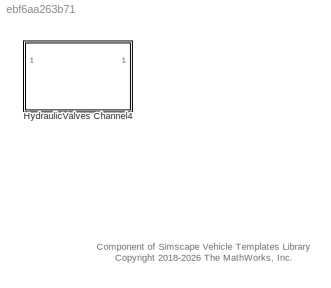
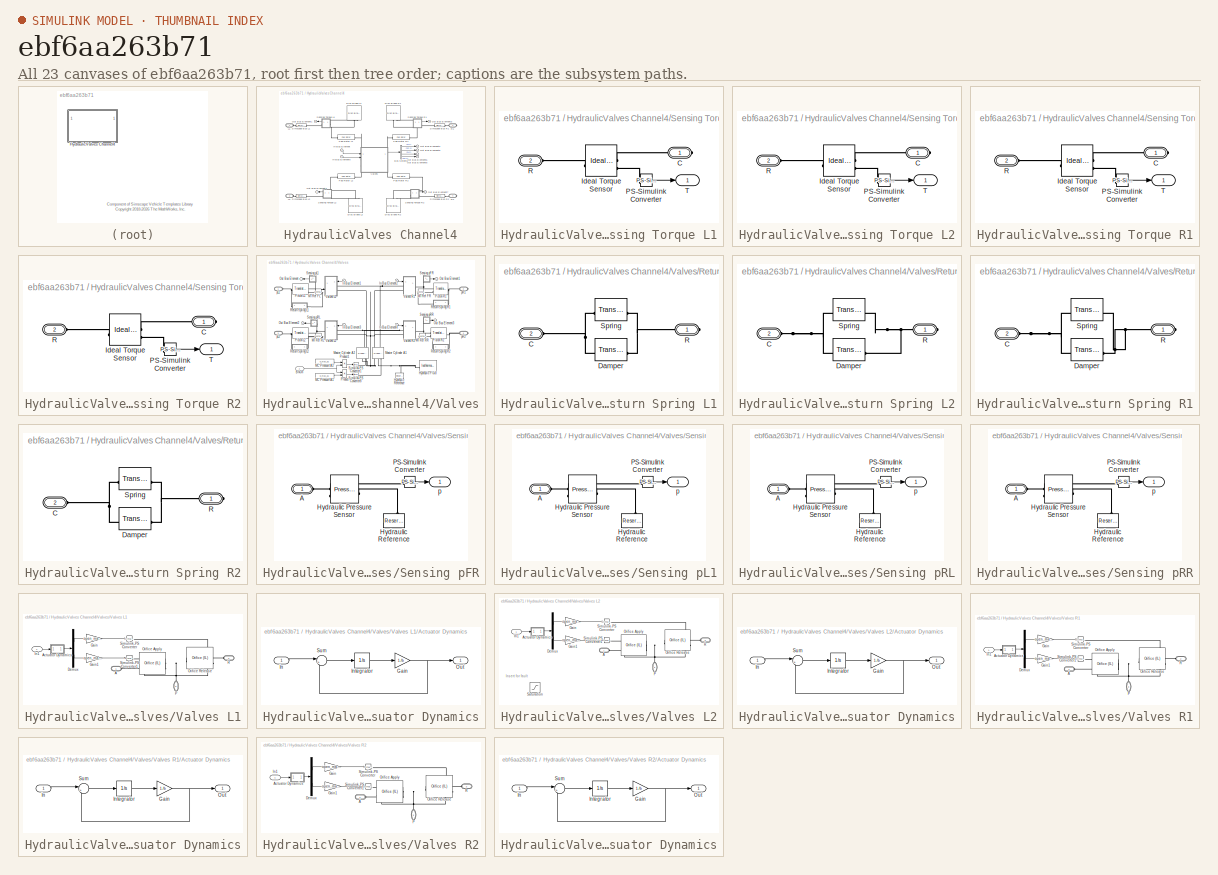
[diagram: thumbnail index - all 23 canvases of the model, root first then tree order]
MODEL slx_ebf6aa263b71
KIND library
CONFIG SolverName = VariableStepAuto
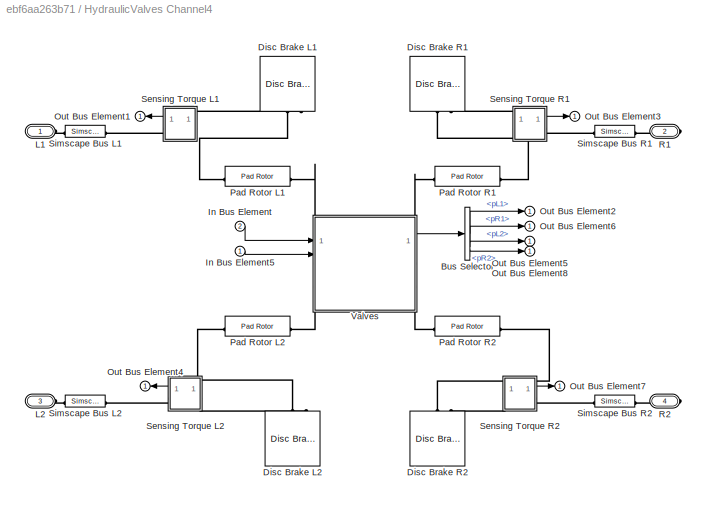
BLOCK [SubSystem] HydraulicValves Channel4
  Tag = PublishSubsystem
  VariantControl = ABS_4_Channel
BLOCK [BusSelector] HydraulicValves Channel4/Bus Selector
  NameLocation = top
  OutputSignals = pL1,pR1,pL2,pR2
BLOCK [Reference] HydraulicValves Channel4/Disc Brake L1  REF=sdl_lib/Brakes & Detents/Rotational/Disc Brake
  NameLocation = right
  SourceBlock = sdl_lib/Brakes & Detents/Rotational/Disc Brake
  SourceType = Disc Brake
BLOCK [Reference] HydraulicValves Channel4/Disc Brake L2  REF=sdl_lib/Brakes & Detents/Rotational/Disc Brake
  NameLocation = right
  SourceBlock = sdl_lib/Brakes & Detents/Rotational/Disc Brake
  SourceType = Disc Brake
BLOCK [Reference] HydraulicValves Channel4/Disc Brake R1  REF=sdl_lib/Brakes & Detents/Rotational/Disc Brake
  NameLocation = left
  SourceBlock = sdl_lib/Brakes & Detents/Rotational/Disc Brake
  SourceType = Disc Brake
BLOCK [Reference] HydraulicValves Channel4/Disc Brake R2  REF=sdl_lib/Brakes & Detents/Rotational/Disc Brake
  NameLocation = left
  SourceBlock = sdl_lib/Brakes & Detents/Rotational/Disc Brake
  SourceType = Disc Brake
BLOCK [Inport] HydraulicValves Channel4/In Bus Element
  Port = 2
BLOCK [Inport] HydraulicValves Channel4/In Bus Element5
BLOCK [PMIOPort] HydraulicValves Channel4/L1
  Side = Left
BLOCK [PMIOPort] HydraulicValves Channel4/L2
  Port = 3
  Side = Left
BLOCK [Outport] HydraulicValves Channel4/Out Bus Element1
  VectorParamsAs1DForOutWhenUnconnected = off
BLOCK [Outport] HydraulicValves Channel4/Out Bus Element2
  VectorParamsAs1DForOutWhenUnconnected = off
BLOCK [Outport] HydraulicValves Channel4/Out Bus Element3
  VectorParamsAs1DForOutWhenUnconnected = off
BLOCK [Outport] HydraulicValves Channel4/Out Bus Element4
  VectorParamsAs1DForOutWhenUnconnected = off
BLOCK [Outport] HydraulicValves Channel4/Out Bus Element5
  VectorParamsAs1DForOutWhenUnconnected = off
BLOCK [Outport] HydraulicValves Channel4/Out Bus Element6
  VectorParamsAs1DForOutWhenUnconnected = off
BLOCK [Outport] HydraulicValves Channel4/Out Bus Element7
  VectorParamsAs1DForOutWhenUnconnected = off
BLOCK [Outport] HydraulicValves Channel4/Out Bus Element8
  VectorParamsAs1DForOutWhenUnconnected = off
BLOCK [Reference] HydraulicValves Channel4/Pad Rotor L1  REF=Brakes_Elements/Pad Rotor
  SourceBlock = Brakes_Elements/Pad Rotor
  SourceType = Pad Rotor Contact
BLOCK [Reference] HydraulicValves Channel4/Pad Rotor L2  REF=Brakes_Elements/Pad Rotor
  SourceBlock = Brakes_Elements/Pad Rotor
  SourceType = Pad Rotor Contact
BLOCK [Reference] HydraulicValves Channel4/Pad Rotor R1  REF=Brakes_Elements/Pad Rotor
  SourceBlock = Brakes_Elements/Pad Rotor
  SourceType = Pad Rotor Contact
BLOCK [Reference] HydraulicValves Channel4/Pad Rotor R2  REF=Brakes_Elements/Pad Rotor
  SourceBlock = Brakes_Elements/Pad Rotor
  SourceType = Pad Rotor Contact
BLOCK [PMIOPort] HydraulicValves Channel4/R1
  Port = 2
  Side = Right
BLOCK [PMIOPort] HydraulicValves Channel4/R2
  Port = 4
  Side = Right
BLOCK [SubSystem] HydraulicValves Channel4/Sensing Torque L1
  NameLocation = top
BLOCK [PMIOPort] HydraulicValves Channel4/Sensing Torque L1/C
  Side = Right
BLOCK [Reference] HydraulicValves Channel4/Sensing Torque L1/Ideal Torque Sensor  REF=fl_lib/Mechanical/Mechanical Sensors/Ideal Torque Sensor
  SourceBlock = fl_lib/Mechanical/Mechanical Sensors/Ideal Torque Sensor
  SourceType = Ideal Torque Sensor
BLOCK [Reference] HydraulicValves Channel4/Sensing Torque L1/PS-Simulink Converter  REF=nesl_utility/PS-Simulink
Converter
  SourceBlock = nesl_utility/PS-Simulink\nConverter
  SourceType = PS-Simulink\nConverter
BLOCK [PMIOPort] HydraulicValves Channel4/Sensing Torque L1/R
  Port = 2
  Side = Left
BLOCK [Outport] HydraulicValves Channel4/Sensing Torque L1/T
  VectorParamsAs1DForOutWhenUnconnected = off
BLOCK [SubSystem] HydraulicValves Channel4/Sensing Torque L2
BLOCK [PMIOPort] HydraulicValves Channel4/Sensing Torque L2/C
  Side = Right
BLOCK [Reference] HydraulicValves Channel4/Sensing Torque L2/Ideal Torque Sensor  REF=fl_lib/Mechanical/Mechanical Sensors/Ideal Torque Sensor
  SourceBlock = fl_lib/Mechanical/Mechanical Sensors/Ideal Torque Sensor
  SourceType = Ideal Torque Sensor
BLOCK [Reference] HydraulicValves Channel4/Sensing Torque L2/PS-Simulink Converter  REF=nesl_utility/PS-Simulink
Converter
  SourceBlock = nesl_utility/PS-Simulink\nConverter
  SourceType = PS-Simulink\nConverter
BLOCK [PMIOPort] HydraulicValves Channel4/Sensing Torque L2/R
  Port = 2
  Side = Left
BLOCK [Outport] HydraulicValves Channel4/Sensing Torque L2/T
  VectorParamsAs1DForOutWhenUnconnected = off
BLOCK [SubSystem] HydraulicValves Channel4/Sensing Torque R1
  NameLocation = top
BLOCK [PMIOPort] HydraulicValves Channel4/Sensing Torque R1/C
  Side = Right
BLOCK [Reference] HydraulicValves Channel4/Sensing Torque R1/Ideal Torque Sensor  REF=fl_lib/Mechanical/Mechanical Sensors/Ideal Torque Sensor
  SourceBlock = fl_lib/Mechanical/Mechanical Sensors/Ideal Torque Sensor
  SourceType = Ideal Torque Sensor
BLOCK [Reference] HydraulicValves Channel4/Sensing Torque R1/PS-Simulink Converter  REF=nesl_utility/PS-Simulink
Converter
  SourceBlock = nesl_utility/PS-Simulink\nConverter
  SourceType = PS-Simulink\nConverter
BLOCK [PMIOPort] HydraulicValves Channel4/Sensing Torque R1/R
  Port = 2
  Side = Left
BLOCK [Outport] HydraulicValves Channel4/Sensing Torque R1/T
  VectorParamsAs1DForOutWhenUnconnected = off
BLOCK [SubSystem] HydraulicValves Channel4/Sensing Torque R2
BLOCK [PMIOPort] HydraulicValves Channel4/Sensing Torque R2/C
  Side = Right
BLOCK [Reference] HydraulicValves Channel4/Sensing Torque R2/Ideal Torque Sensor  REF=fl_lib/Mechanical/Mechanical Sensors/Ideal Torque Sensor
  SourceBlock = fl_lib/Mechanical/Mechanical Sensors/Ideal Torque Sensor
  SourceType = Ideal Torque Sensor
BLOCK [Reference] HydraulicValves Channel4/Sensing Torque R2/PS-Simulink Converter  REF=nesl_utility/PS-Simulink
Converter
  SourceBlock = nesl_utility/PS-Simulink\nConverter
  SourceType = PS-Simulink\nConverter
BLOCK [PMIOPort] HydraulicValves Channel4/Sensing Torque R2/R
  Port = 2
  Side = Left
BLOCK [Outport] HydraulicValves Channel4/Sensing Torque R2/T
  VectorParamsAs1DForOutWhenUnconnected = off
BLOCK [SimscapeBus] HydraulicValves Channel4/Simscape Bus L1
  HierarchyStrings = Axle1D
BLOCK [SimscapeBus] HydraulicValves Channel4/Simscape Bus L2
  HierarchyStrings = Axle1D
BLOCK [SimscapeBus] HydraulicValves Channel4/Simscape Bus R1
  HierarchyStrings = Axle1D
BLOCK [SimscapeBus] HydraulicValves Channel4/Simscape Bus R2
  HierarchyStrings = Axle1D
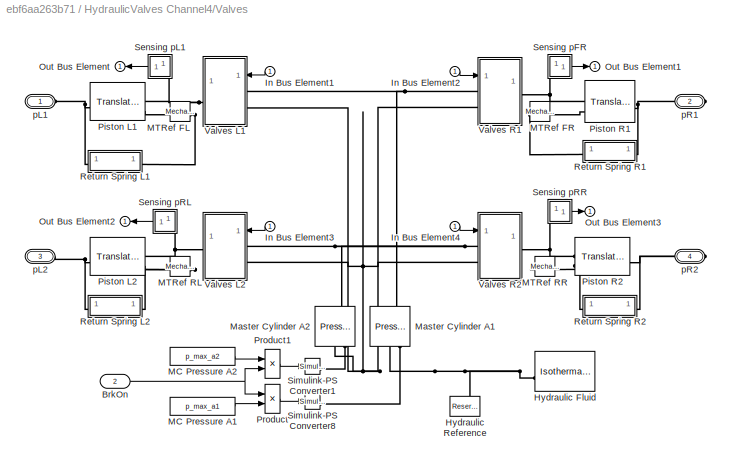
BLOCK [SubSystem] HydraulicValves Channel4/Valves
  VariantControl = Valves
BLOCK [Inport] HydraulicValves Channel4/Valves/BrkOn
  Port = 2
BLOCK [Reference] HydraulicValves Channel4/Valves/Hydraulic Fluid  REF=fl_lib/Isothermal Liquid/Utilities/Isothermal Liquid
Properties (IL)
  LibrarySourceBlock = sh_lib/Hydraulic Utilities/Hydraulic Fluid
  SourceBlock = fl_lib/Isothermal Liquid/Utilities/Isothermal Liquid\nProperties (IL)
  SourceType = Isothermal Liquid\nProperties (IL)
BLOCK [Reference] HydraulicValves Channel4/Valves/Hydraulic Reference  REF=fl_lib/Isothermal Liquid/Elements/Reservoir (IL)
  LibrarySourceBlock = fl_lib/Hydraulic/Hydraulic Elements/Hydraulic Reference
  NameLocation = right
  SourceBlock = fl_lib/Isothermal Liquid/Elements/Reservoir (IL)
  SourceType = Reservoir (IL)
BLOCK [Inport] HydraulicValves Channel4/Valves/In Bus Element1
BLOCK [Inport] HydraulicValves Channel4/Valves/In Bus Element2
BLOCK [Inport] HydraulicValves Channel4/Valves/In Bus Element3
BLOCK [Inport] HydraulicValves Channel4/Valves/In Bus Element4
BLOCK [Constant] HydraulicValves Channel4/Valves/MC Pressure A1
  Value = p_max_a1
BLOCK [Constant] HydraulicValves Channel4/Valves/MC Pressure A2
  NameLocation = top
  Value = p_max_a2
BLOCK [Reference] HydraulicValves Channel4/Valves/MTRef FL  REF=fl_lib/Mechanical/Translational
Elements/Mechanical
Translational
Reference
  SourceBlock = fl_lib/Mechanical/Translational\nElements/Mechanical\nTranslational\nReference
  SourceType = Mechanical\nTranslational\nReference
BLOCK [Reference] HydraulicValves Channel4/Valves/MTRef FR  REF=fl_lib/Mechanical/Translational
Elements/Mechanical
Translational
Reference
  SourceBlock = fl_lib/Mechanical/Translational\nElements/Mechanical\nTranslational\nReference
  SourceType = Mechanical\nTranslational\nReference
BLOCK [Reference] HydraulicValves Channel4/Valves/MTRef RL  REF=fl_lib/Mechanical/Translational
Elements/Mechanical
Translational
Reference
  SourceBlock = fl_lib/Mechanical/Translational\nElements/Mechanical\nTranslational\nReference
  SourceType = Mechanical\nTranslational\nReference
BLOCK [Reference] HydraulicValves Channel4/Valves/MTRef RR  REF=fl_lib/Mechanical/Translational
Elements/Mechanical
Translational
Reference
  SourceBlock = fl_lib/Mechanical/Translational\nElements/Mechanical\nTranslational\nReference
  SourceType = Mechanical\nTranslational\nReference
BLOCK [Reference] HydraulicValves Channel4/Valves/Master Cylinder A1  REF=fl_lib/Isothermal Liquid/Sources/Pressure Source (IL)
  LibrarySourceBlock = fl_lib/Hydraulic/Hydraulic Sources/Hydraulic Pressure\nSource
  NameLocation = right
  SourceBlock = fl_lib/Isothermal Liquid/Sources/Pressure Source (IL)
  SourceType = Pressure Source (IL)
BLOCK [Reference] HydraulicValves Channel4/Valves/Master Cylinder A2  REF=fl_lib/Isothermal Liquid/Sources/Pressure Source (IL)
  LibrarySourceBlock = fl_lib/Hydraulic/Hydraulic Sources/Hydraulic Pressure\nSource
  NameLocation = left
  SourceBlock = fl_lib/Isothermal Liquid/Sources/Pressure Source (IL)
  SourceType = Pressure Source (IL)
BLOCK [Outport] HydraulicValves Channel4/Valves/Out Bus Element
  VectorParamsAs1DForOutWhenUnconnected = off
BLOCK [Outport] HydraulicValves Channel4/Valves/Out Bus Element1
  VectorParamsAs1DForOutWhenUnconnected = off
BLOCK [Outport] HydraulicValves Channel4/Valves/Out Bus Element2
  VectorParamsAs1DForOutWhenUnconnected = off
BLOCK [Outport] HydraulicValves Channel4/Valves/Out Bus Element3
  VectorParamsAs1DForOutWhenUnconnected = off
BLOCK [Reference] HydraulicValves Channel4/Valves/Piston L1  REF=fl_lib/Isothermal Liquid/Elements/Translational
Mechanical Converter
(IL)
  LibrarySourceBlock = fl_lib/Hydraulic/Hydraulic Elements/Translational\nHydro-Mechanical\nConverter
  SourceBlock = fl_lib/Isothermal Liquid/Elements/Translational\nMechanical Converter\n(IL)
  SourceType = Translational\nMechanical Converter\n(IL)
BLOCK [Reference] HydraulicValves Channel4/Valves/Piston L2  REF=fl_lib/Isothermal Liquid/Elements/Translational
Mechanical Converter
(IL)
  LibrarySourceBlock = fl_lib/Hydraulic/Hydraulic Elements/Translational\nHydro-Mechanical\nConverter
  SourceBlock = fl_lib/Isothermal Liquid/Elements/Translational\nMechanical Converter\n(IL)
  SourceType = Translational\nMechanical Converter\n(IL)
BLOCK [Reference] HydraulicValves Channel4/Valves/Piston R1  REF=fl_lib/Isothermal Liquid/Elements/Translational
Mechanical Converter
(IL)
  LibrarySourceBlock = fl_lib/Hydraulic/Hydraulic Elements/Translational\nHydro-Mechanical\nConverter
  SourceBlock = fl_lib/Isothermal Liquid/Elements/Translational\nMechanical Converter\n(IL)
  SourceType = Translational\nMechanical Converter\n(IL)
BLOCK [Reference] HydraulicValves Channel4/Valves/Piston R2  REF=fl_lib/Isothermal Liquid/Elements/Translational
Mechanical Converter
(IL)
  LibrarySourceBlock = fl_lib/Hydraulic/Hydraulic Elements/Translational\nHydro-Mechanical\nConverter
  SourceBlock = fl_lib/Isothermal Liquid/Elements/Translational\nMechanical Converter\n(IL)
  SourceType = Translational\nMechanical Converter\n(IL)
BLOCK [Product] HydraulicValves Channel4/Valves/Product
BLOCK [Product] HydraulicValves Channel4/Valves/Product1
BLOCK [SubSystem] HydraulicValves Channel4/Valves/Return Spring L1
BLOCK [PMIOPort] HydraulicValves Channel4/Valves/Return Spring L1/C
  Port = 2
  Side = Left
BLOCK [Reference] HydraulicValves Channel4/Valves/Return Spring L1/Damper  REF=fl_lib/Mechanical/Translational
Elements/Translational Damper
  SourceBlock = fl_lib/Mechanical/Translational\nElements/Translational Damper
  SourceType = Translational Damper
BLOCK [PMIOPort] HydraulicValves Channel4/Valves/Return Spring L1/R
  Side = Right
BLOCK [Reference] HydraulicValves Channel4/Valves/Return Spring L1/Spring  REF=fl_lib/Mechanical/Translational
Elements/Translational Spring
  SourceBlock = fl_lib/Mechanical/Translational\nElements/Translational Spring
  SourceType = Translational Spring
BLOCK [SubSystem] HydraulicValves Channel4/Valves/Return Spring L2
BLOCK [PMIOPort] HydraulicValves Channel4/Valves/Return Spring L2/C
  Port = 2
  Side = Left
BLOCK [Reference] HydraulicValves Channel4/Valves/Return Spring L2/Damper  REF=fl_lib/Mechanical/Translational
Elements/Translational Damper
  SourceBlock = fl_lib/Mechanical/Translational\nElements/Translational Damper
  SourceType = Translational Damper
BLOCK [PMIOPort] HydraulicValves Channel4/Valves/Return Spring L2/R
  Side = Right
BLOCK [Reference] HydraulicValves Channel4/Valves/Return Spring L2/Spring  REF=fl_lib/Mechanical/Translational
Elements/Translational Spring
  SourceBlock = fl_lib/Mechanical/Translational\nElements/Translational Spring
  SourceType = Translational Spring
BLOCK [SubSystem] HydraulicValves Channel4/Valves/Return Spring R1
BLOCK [PMIOPort] HydraulicValves Channel4/Valves/Return Spring R1/C
  Port = 2
  Side = Left
BLOCK [Reference] HydraulicValves Channel4/Valves/Return Spring R1/Damper  REF=fl_lib/Mechanical/Translational
Elements/Translational Damper
  SourceBlock = fl_lib/Mechanical/Translational\nElements/Translational Damper
  SourceType = Translational Damper
BLOCK [PMIOPort] HydraulicValves Channel4/Valves/Return Spring R1/R
  Side = Right
BLOCK [Reference] HydraulicValves Channel4/Valves/Return Spring R1/Spring  REF=fl_lib/Mechanical/Translational
Elements/Translational Spring
  SourceBlock = fl_lib/Mechanical/Translational\nElements/Translational Spring
  SourceType = Translational Spring
BLOCK [SubSystem] HydraulicValves Channel4/Valves/Return Spring R2
BLOCK [PMIOPort] HydraulicValves Channel4/Valves/Return Spring R2/C
  Port = 2
  Side = Left
BLOCK [Reference] HydraulicValves Channel4/Valves/Return Spring R2/Damper  REF=fl_lib/Mechanical/Translational
Elements/Translational Damper
  SourceBlock = fl_lib/Mechanical/Translational\nElements/Translational Damper
  SourceType = Translational Damper
BLOCK [PMIOPort] HydraulicValves Channel4/Valves/Return Spring R2/R
  Side = Right
BLOCK [Reference] HydraulicValves Channel4/Valves/Return Spring R2/Spring  REF=fl_lib/Mechanical/Translational
Elements/Translational Spring
  SourceBlock = fl_lib/Mechanical/Translational\nElements/Translational Spring
  SourceType = Translational Spring
BLOCK [SubSystem] HydraulicValves Channel4/Valves/Sensing pFR
BLOCK [PMIOPort] HydraulicValves Channel4/Valves/Sensing pFR/A
  Side = Left
BLOCK [Reference] HydraulicValves Channel4/Valves/Sensing pFR/Hydraulic Pressure Sensor  REF=fl_lib/Isothermal Liquid/Sensors/Pressure Sensor (IL)
  LibrarySourceBlock = fl_lib/Hydraulic/Hydraulic Sensors/Hydraulic Pressure\nSensor
  SourceBlock = fl_lib/Isothermal Liquid/Sensors/Pressure Sensor (IL)
  SourceType = Pressure Sensor (IL)
BLOCK [Reference] HydraulicValves Channel4/Valves/Sensing pFR/Hydraulic Reference  REF=fl_lib/Isothermal Liquid/Elements/Reservoir (IL)
  LibrarySourceBlock = fl_lib/Hydraulic/Hydraulic Elements/Hydraulic Reference
  NameLocation = right
  SourceBlock = fl_lib/Isothermal Liquid/Elements/Reservoir (IL)
  SourceType = Reservoir (IL)
BLOCK [Reference] HydraulicValves Channel4/Valves/Sensing pFR/PS-Simulink Converter  REF=nesl_utility/PS-Simulink
Converter
  SourceBlock = nesl_utility/PS-Simulink\nConverter
  SourceType = PS-Simulink\nConverter
BLOCK [Outport] HydraulicValves Channel4/Valves/Sensing pFR/p
  VectorParamsAs1DForOutWhenUnconnected = off
BLOCK [SubSystem] HydraulicValves Channel4/Valves/Sensing pL1
  NameLocation = top
BLOCK [PMIOPort] HydraulicValves Channel4/Valves/Sensing pL1/A
  Side = Left
BLOCK [Reference] HydraulicValves Channel4/Valves/Sensing pL1/Hydraulic Pressure Sensor  REF=fl_lib/Isothermal Liquid/Sensors/Pressure Sensor (IL)
  LibrarySourceBlock = fl_lib/Hydraulic/Hydraulic Sensors/Hydraulic Pressure\nSensor
  SourceBlock = fl_lib/Isothermal Liquid/Sensors/Pressure Sensor (IL)
  SourceType = Pressure Sensor (IL)
BLOCK [Reference] HydraulicValves Channel4/Valves/Sensing pL1/Hydraulic Reference  REF=fl_lib/Isothermal Liquid/Elements/Reservoir (IL)
  LibrarySourceBlock = fl_lib/Hydraulic/Hydraulic Elements/Hydraulic Reference
  NameLocation = right
  SourceBlock = fl_lib/Isothermal Liquid/Elements/Reservoir (IL)
  SourceType = Reservoir (IL)
BLOCK [Reference] HydraulicValves Channel4/Valves/Sensing pL1/PS-Simulink Converter  REF=nesl_utility/PS-Simulink
Converter
  SourceBlock = nesl_utility/PS-Simulink\nConverter
  SourceType = PS-Simulink\nConverter
BLOCK [Outport] HydraulicValves Channel4/Valves/Sensing pL1/p
  VectorParamsAs1DForOutWhenUnconnected = off
BLOCK [SubSystem] HydraulicValves Channel4/Valves/Sensing pRL
BLOCK [PMIOPort] HydraulicValves Channel4/Valves/Sensing pRL/A
  Side = Left
BLOCK [Reference] HydraulicValves Channel4/Valves/Sensing pRL/Hydraulic Pressure Sensor  REF=fl_lib/Isothermal Liquid/Sensors/Pressure Sensor (IL)
  LibrarySourceBlock = fl_lib/Hydraulic/Hydraulic Sensors/Hydraulic Pressure\nSensor
  SourceBlock = fl_lib/Isothermal Liquid/Sensors/Pressure Sensor (IL)
  SourceType = Pressure Sensor (IL)
BLOCK [Reference] HydraulicValves Channel4/Valves/Sensing pRL/Hydraulic Reference  REF=fl_lib/Isothermal Liquid/Elements/Reservoir (IL)
  LibrarySourceBlock = fl_lib/Hydraulic/Hydraulic Elements/Hydraulic Reference
  NameLocation = right
  SourceBlock = fl_lib/Isothermal Liquid/Elements/Reservoir (IL)
  SourceType = Reservoir (IL)
BLOCK [Reference] HydraulicValves Channel4/Valves/Sensing pRL/PS-Simulink Converter  REF=nesl_utility/PS-Simulink
Converter
  SourceBlock = nesl_utility/PS-Simulink\nConverter
  SourceType = PS-Simulink\nConverter
BLOCK [Outport] HydraulicValves Channel4/Valves/Sensing pRL/p
  VectorParamsAs1DForOutWhenUnconnected = off
BLOCK [SubSystem] HydraulicValves Channel4/Valves/Sensing pRR
BLOCK [PMIOPort] HydraulicValves Channel4/Valves/Sensing pRR/A
  Side = Left
BLOCK [Reference] HydraulicValves Channel4/Valves/Sensing pRR/Hydraulic Pressure Sensor  REF=fl_lib/Isothermal Liquid/Sensors/Pressure Sensor (IL)
  LibrarySourceBlock = fl_lib/Hydraulic/Hydraulic Sensors/Hydraulic Pressure\nSensor
  SourceBlock = fl_lib/Isothermal Liquid/Sensors/Pressure Sensor (IL)
  SourceType = Pressure Sensor (IL)
BLOCK [Reference] HydraulicValves Channel4/Valves/Sensing pRR/Hydraulic Reference  REF=fl_lib/Isothermal Liquid/Elements/Reservoir (IL)
  LibrarySourceBlock = fl_lib/Hydraulic/Hydraulic Elements/Hydraulic Reference
  NameLocation = right
  SourceBlock = fl_lib/Isothermal Liquid/Elements/Reservoir (IL)
  SourceType = Reservoir (IL)
BLOCK [Reference] HydraulicValves Channel4/Valves/Sensing pRR/PS-Simulink Converter  REF=nesl_utility/PS-Simulink
Converter
  SourceBlock = nesl_utility/PS-Simulink\nConverter
  SourceType = PS-Simulink\nConverter
BLOCK [Outport] HydraulicValves Channel4/Valves/Sensing pRR/p
  VectorParamsAs1DForOutWhenUnconnected = off
BLOCK [Reference] HydraulicValves Channel4/Valves/Simulink-PS Converter1  REF=nesl_utility/Simulink-PS
Converter
  SourceBlock = nesl_utility/Simulink-PS\nConverter
  SourceType = Simulink-PS\nConverter
BLOCK [Reference] HydraulicValves Channel4/Valves/Simulink-PS Converter8  REF=nesl_utility/Simulink-PS
Converter
  SourceBlock = nesl_utility/Simulink-PS\nConverter
  SourceType = Simulink-PS\nConverter
BLOCK [SubSystem] HydraulicValves Channel4/Valves/Valves L1
BLOCK [PMIOPort] HydraulicValves Channel4/Valves/Valves L1/A
  Side = Left
BLOCK [SubSystem] HydraulicValves Channel4/Valves/Valves L1/Actuator Dynamics
BLOCK [Gain] HydraulicValves Channel4/Valves/Valves L1/Actuator Dynamics/Gain
  Gain = 1./b
BLOCK [Inport] HydraulicValves Channel4/Valves/Valves L1/Actuator Dynamics/In
BLOCK [Integrator] HydraulicValves Channel4/Valves/Valves L1/Actuator Dynamics/Integrator
  InitialCondition = x_initial.*b
BLOCK [Outport] HydraulicValves Channel4/Valves/Valves L1/Actuator Dynamics/Out
  VectorParamsAs1DForOutWhenUnconnected = off
BLOCK [Sum] HydraulicValves Channel4/Valves/Valves L1/Actuator Dynamics/Sum
  InputSameDT = on
  Inputs = |+-
  OutDataTypeStr = Inherit: Same as first input
  SaturateOnIntegerOverflow = on
BLOCK [Demux] HydraulicValves Channel4/Valves/Valves L1/Demux
  Outputs = 2
BLOCK [Gain] HydraulicValves Channel4/Valves/Valves L1/Gain
  AttributesFormatString = %<Gain>
  Gain = open_max_rel
BLOCK [Gain] HydraulicValves Channel4/Valves/Valves L1/Gain1
  AttributesFormatString = %<Gain>
  Gain = open_max_apply
BLOCK [Inport] HydraulicValves Channel4/Valves/Valves L1/In1
BLOCK [Reference] HydraulicValves Channel4/Valves/Valves L1/Orifice Apply  REF=SimscapeFluids_lib/Isothermal Liquid/Valves & Orifices/Orifices/Orifice (IL)
  LibrarySourceBlock = sh_lib/Orifices/Variable Orifice
  SourceBlock = SimscapeFluids_lib/Isothermal Liquid/Valves & Orifices/Orifices/Orifice (IL)
  SourceType = Orifice (IL)
BLOCK [Reference] HydraulicValves Channel4/Valves/Valves L1/Orifice Release  REF=SimscapeFluids_lib/Isothermal Liquid/Valves & Orifices/Orifices/Orifice (IL)
  LibrarySourceBlock = sh_lib/Orifices/Variable Orifice
  NameLocation = top
  SourceBlock = SimscapeFluids_lib/Isothermal Liquid/Valves & Orifices/Orifices/Orifice (IL)
  SourceType = Orifice (IL)
BLOCK [PMIOPort] HydraulicValves Channel4/Valves/Valves L1/P
  NameLocation = right
  Port = 3
  Side = Right
BLOCK [PMIOPort] HydraulicValves Channel4/Valves/Valves L1/R
  Port = 2
  Side = Left
BLOCK [Reference] HydraulicValves Channel4/Valves/Valves L1/Simulink-PS Converter  REF=nesl_utility/Simulink-PS
Converter
  SourceBlock = nesl_utility/Simulink-PS\nConverter
  SourceType = Simulink-PS\nConverter
BLOCK [Reference] HydraulicValves Channel4/Valves/Valves L1/Simulink-PS Converter1  REF=nesl_utility/Simulink-PS
Converter
  SourceBlock = nesl_utility/Simulink-PS\nConverter
  SourceType = Simulink-PS\nConverter
BLOCK [SubSystem] HydraulicValves Channel4/Valves/Valves L2
BLOCK [PMIOPort] HydraulicValves Channel4/Valves/Valves L2/A
  Side = Left
BLOCK [SubSystem] HydraulicValves Channel4/Valves/Valves L2/Actuator Dynamics
BLOCK [Gain] HydraulicValves Channel4/Valves/Valves L2/Actuator Dynamics/Gain
  Gain = 1./b
BLOCK [Inport] HydraulicValves Channel4/Valves/Valves L2/Actuator Dynamics/In
BLOCK [Integrator] HydraulicValves Channel4/Valves/Valves L2/Actuator Dynamics/Integrator
  InitialCondition = x_initial.*b
BLOCK [Outport] HydraulicValves Channel4/Valves/Valves L2/Actuator Dynamics/Out
  VectorParamsAs1DForOutWhenUnconnected = off
BLOCK [Sum] HydraulicValves Channel4/Valves/Valves L2/Actuator Dynamics/Sum
  InputSameDT = on
  Inputs = |+-
  OutDataTypeStr = Inherit: Same as first input
  SaturateOnIntegerOverflow = on
BLOCK [Demux] HydraulicValves Channel4/Valves/Valves L2/Demux
  Outputs = 2
BLOCK [Gain] HydraulicValves Channel4/Valves/Valves L2/Gain
  AttributesFormatString = %<Gain>
  Gain = open_max_rel
BLOCK [Gain] HydraulicValves Channel4/Valves/Valves L2/Gain1
  AttributesFormatString = %<Gain>
  Gain = open_max_apply
BLOCK [Inport] HydraulicValves Channel4/Valves/Valves L2/In1
BLOCK [Reference] HydraulicValves Channel4/Valves/Valves L2/Orifice Apply  REF=SimscapeFluids_lib/Isothermal Liquid/Valves & Orifices/Orifices/Orifice (IL)
  LibrarySourceBlock = sh_lib/Orifices/Variable Orifice
  SourceBlock = SimscapeFluids_lib/Isothermal Liquid/Valves & Orifices/Orifices/Orifice (IL)
  SourceType = Orifice (IL)
BLOCK [Reference] HydraulicValves Channel4/Valves/Valves L2/Orifice Release  REF=SimscapeFluids_lib/Isothermal Liquid/Valves & Orifices/Orifices/Orifice (IL)
  LibrarySourceBlock = sh_lib/Orifices/Variable Orifice
  SourceBlock = SimscapeFluids_lib/Isothermal Liquid/Valves & Orifices/Orifices/Orifice (IL)
  SourceType = Orifice (IL)
BLOCK [PMIOPort] HydraulicValves Channel4/Valves/Valves L2/P
  NameLocation = right
  Port = 3
  Side = Right
BLOCK [PMIOPort] HydraulicValves Channel4/Valves/Valves L2/R
  Port = 2
  Side = Left
BLOCK [Saturate] HydraulicValves Channel4/Valves/Valves L2/Saturation
  Commented = on
  LowerLimit = 0.5
  UpperLimit = inf
BLOCK [Reference] HydraulicValves Channel4/Valves/Valves L2/Simulink-PS Converter  REF=nesl_utility/Simulink-PS
Converter
  SourceBlock = nesl_utility/Simulink-PS\nConverter
  SourceType = Simulink-PS\nConverter
BLOCK [Reference] HydraulicValves Channel4/Valves/Valves L2/Simulink-PS Converter1  REF=nesl_utility/Simulink-PS
Converter
  SourceBlock = nesl_utility/Simulink-PS\nConverter
  SourceType = Simulink-PS\nConverter
BLOCK [SubSystem] HydraulicValves Channel4/Valves/Valves R1
BLOCK [PMIOPort] HydraulicValves Channel4/Valves/Valves R1/A
  Side = Left
BLOCK [SubSystem] HydraulicValves Channel4/Valves/Valves R1/Actuator Dynamics
BLOCK [Gain] HydraulicValves Channel4/Valves/Valves R1/Actuator Dynamics/Gain
  Gain = 1./b
BLOCK [Inport] HydraulicValves Channel4/Valves/Valves R1/Actuator Dynamics/In
BLOCK [Integrator] HydraulicValves Channel4/Valves/Valves R1/Actuator Dynamics/Integrator
  InitialCondition = x_initial.*b
BLOCK [Outport] HydraulicValves Channel4/Valves/Valves R1/Actuator Dynamics/Out
  VectorParamsAs1DForOutWhenUnconnected = off
BLOCK [Sum] HydraulicValves Channel4/Valves/Valves R1/Actuator Dynamics/Sum
  InputSameDT = on
  Inputs = |+-
  OutDataTypeStr = Inherit: Same as first input
  SaturateOnIntegerOverflow = on
BLOCK [Demux] HydraulicValves Channel4/Valves/Valves R1/Demux
  Outputs = 2
BLOCK [Gain] HydraulicValves Channel4/Valves/Valves R1/Gain
  AttributesFormatString = %<Gain>
  Gain = open_max_rel
BLOCK [Gain] HydraulicValves Channel4/Valves/Valves R1/Gain1
  AttributesFormatString = %<Gain>
  Gain = open_max_apply
BLOCK [Inport] HydraulicValves Channel4/Valves/Valves R1/In1
BLOCK [Reference] HydraulicValves Channel4/Valves/Valves R1/Orifice Apply  REF=SimscapeFluids_lib/Isothermal Liquid/Valves & Orifices/Orifices/Orifice (IL)
  LibrarySourceBlock = sh_lib/Orifices/Variable Orifice
  SourceBlock = SimscapeFluids_lib/Isothermal Liquid/Valves & Orifices/Orifices/Orifice (IL)
  SourceType = Orifice (IL)
BLOCK [Reference] HydraulicValves Channel4/Valves/Valves R1/Orifice Release  REF=SimscapeFluids_lib/Isothermal Liquid/Valves & Orifices/Orifices/Orifice (IL)
  LibrarySourceBlock = sh_lib/Orifices/Variable Orifice
  SourceBlock = SimscapeFluids_lib/Isothermal Liquid/Valves & Orifices/Orifices/Orifice (IL)
  SourceType = Orifice (IL)
BLOCK [PMIOPort] HydraulicValves Channel4/Valves/Valves R1/P
  NameLocation = right
  Port = 3
  Side = Right
BLOCK [PMIOPort] HydraulicValves Channel4/Valves/Valves R1/R
  Port = 2
  Side = Left
BLOCK [Reference] HydraulicValves Channel4/Valves/Valves R1/Simulink-PS Converter  REF=nesl_utility/Simulink-PS
Converter
  SourceBlock = nesl_utility/Simulink-PS\nConverter
  SourceType = Simulink-PS\nConverter
BLOCK [Reference] HydraulicValves Channel4/Valves/Valves R1/Simulink-PS Converter1  REF=nesl_utility/Simulink-PS
Converter
  SourceBlock = nesl_utility/Simulink-PS\nConverter
  SourceType = Simulink-PS\nConverter
BLOCK [SubSystem] HydraulicValves Channel4/Valves/Valves R2
BLOCK [PMIOPort] HydraulicValves Channel4/Valves/Valves R2/A
  Side = Left
BLOCK [SubSystem] HydraulicValves Channel4/Valves/Valves R2/Actuator Dynamics
BLOCK [Gain] HydraulicValves Channel4/Valves/Valves R2/Actuator Dynamics/Gain
  Gain = 1./b
BLOCK [Inport] HydraulicValves Channel4/Valves/Valves R2/Actuator Dynamics/In
BLOCK [Integrator] HydraulicValves Channel4/Valves/Valves R2/Actuator Dynamics/Integrator
  InitialCondition = x_initial.*b
BLOCK [Outport] HydraulicValves Channel4/Valves/Valves R2/Actuator Dynamics/Out
  VectorParamsAs1DForOutWhenUnconnected = off
BLOCK [Sum] HydraulicValves Channel4/Valves/Valves R2/Actuator Dynamics/Sum
  InputSameDT = on
  Inputs = |+-
  OutDataTypeStr = Inherit: Same as first input
  SaturateOnIntegerOverflow = on
BLOCK [Demux] HydraulicValves Channel4/Valves/Valves R2/Demux
  Outputs = 2
BLOCK [Gain] HydraulicValves Channel4/Valves/Valves R2/Gain
  AttributesFormatString = %<Gain>
  Gain = open_max_rel
BLOCK [Gain] HydraulicValves Channel4/Valves/Valves R2/Gain1
  AttributesFormatString = %<Gain>
  Gain = open_max_apply
BLOCK [Inport] HydraulicValves Channel4/Valves/Valves R2/In1
BLOCK [Reference] HydraulicValves Channel4/Valves/Valves R2/Orifice Apply  REF=SimscapeFluids_lib/Isothermal Liquid/Valves & Orifices/Orifices/Orifice (IL)
  LibrarySourceBlock = sh_lib/Orifices/Variable Orifice
  SourceBlock = SimscapeFluids_lib/Isothermal Liquid/Valves & Orifices/Orifices/Orifice (IL)
  SourceType = Orifice (IL)
BLOCK [Reference] HydraulicValves Channel4/Valves/Valves R2/Orifice Release  REF=SimscapeFluids_lib/Isothermal Liquid/Valves & Orifices/Orifices/Orifice (IL)
  LibrarySourceBlock = sh_lib/Orifices/Variable Orifice
  SourceBlock = SimscapeFluids_lib/Isothermal Liquid/Valves & Orifices/Orifices/Orifice (IL)
  SourceType = Orifice (IL)
BLOCK [PMIOPort] HydraulicValves Channel4/Valves/Valves R2/P
  NameLocation = right
  Port = 3
  Side = Right
BLOCK [PMIOPort] HydraulicValves Channel4/Valves/Valves R2/R
  Port = 2
  Side = Left
BLOCK [Reference] HydraulicValves Channel4/Valves/Valves R2/Simulink-PS Converter  REF=nesl_utility/Simulink-PS
Converter
  SourceBlock = nesl_utility/Simulink-PS\nConverter
  SourceType = Simulink-PS\nConverter
BLOCK [Reference] HydraulicValves Channel4/Valves/Valves R2/Simulink-PS Converter1  REF=nesl_utility/Simulink-PS
Converter
  SourceBlock = nesl_utility/Simulink-PS\nConverter
  SourceType = Simulink-PS\nConverter
BLOCK [PMIOPort] HydraulicValves Channel4/Valves/pL1
  Side = Left
BLOCK [PMIOPort] HydraulicValves Channel4/Valves/pL2
  Port = 3
  Side = Left
BLOCK [PMIOPort] HydraulicValves Channel4/Valves/pR1
  Port = 2
  Side = Right
BLOCK [PMIOPort] HydraulicValves Channel4/Valves/pR2
  Port = 4
  Side = Right
ANNOTATION (root): Component of Simscape Vehicle Templates Library <copyright redacted>
ANNOTATION HydraulicValves Channel4/Valves/Valves L2: Insert for fault
LINE HydraulicValves Channel4/Bus Selector:1 -> HydraulicValves Channel4/Out Bus Element2:1
LINE HydraulicValves Channel4/Bus Selector:2 -> HydraulicValves Channel4/Out Bus Element6:1
LINE HydraulicValves Channel4/Bus Selector:3 -> HydraulicValves Channel4/Out Bus Element5:1
LINE HydraulicValves Channel4/Bus Selector:4 -> HydraulicValves Channel4/Out Bus Element8:1
LINE HydraulicValves Channel4/In Bus Element5:1 -> HydraulicValves Channel4/Valves:2
LINE HydraulicValves Channel4/In Bus Element:1 -> HydraulicValves Channel4/Valves:1
LINE HydraulicValves Channel4/Sensing Torque L1/PS-Simulink Converter:1 -> HydraulicValves Channel4/Sensing Torque L1/T:1
LINE HydraulicValves Channel4/Sensing Torque L1:1 -> HydraulicValves Channel4/Out Bus Element1:1
LINE HydraulicValves Channel4/Sensing Torque L2/PS-Simulink Converter:1 -> HydraulicValves Channel4/Sensing Torque L2/T:1
LINE HydraulicValves Channel4/Sensing Torque L2:1 -> HydraulicValves Channel4/Out Bus Element4:1
LINE HydraulicValves Channel4/Sensing Torque R1/PS-Simulink Converter:1 -> HydraulicValves Channel4/Sensing Torque R1/T:1
LINE HydraulicValves Channel4/Sensing Torque R1:1 -> HydraulicValves Channel4/Out Bus Element3:1
LINE HydraulicValves Channel4/Sensing Torque R2/PS-Simulink Converter:1 -> HydraulicValves Channel4/Sensing Torque R2/T:1
LINE HydraulicValves Channel4/Sensing Torque R2:1 -> HydraulicValves Channel4/Out Bus Element7:1
NET HydraulicValves Channel4/Valves/BrkOn:1 -> HydraulicValves Channel4/Valves/Product1:2, HydraulicValves Channel4/Valves/Product:1
LINE HydraulicValves Channel4/Valves/In Bus Element1:1 -> HydraulicValves Channel4/Valves/Valves L1:1
LINE HydraulicValves Channel4/Valves/In Bus Element2:1 -> HydraulicValves Channel4/Valves/Valves R1:1
LINE HydraulicValves Channel4/Valves/In Bus Element3:1 -> HydraulicValves Channel4/Valves/Valves L2:1
LINE HydraulicValves Channel4/Valves/In Bus Element4:1 -> HydraulicValves Channel4/Valves/Valves R2:1
LINE HydraulicValves Channel4/Valves/MC Pressure A1:1 -> HydraulicValves Channel4/Valves/Product:2
LINE HydraulicValves Channel4/Valves/MC Pressure A2:1 -> HydraulicValves Channel4/Valves/Product1:1
LINE HydraulicValves Channel4/Valves/Product1:1 -> HydraulicValves Channel4/Valves/Simulink-PS Converter1:1
LINE HydraulicValves Channel4/Valves/Product:1 -> HydraulicValves Channel4/Valves/Simulink-PS Converter8:1
LINE HydraulicValves Channel4/Valves/Sensing pFR/PS-Simulink Converter:1 -> HydraulicValves Channel4/Valves/Sensing pFR/p:1
LINE HydraulicValves Channel4/Valves/Sensing pFR:1 -> HydraulicValves Channel4/Valves/Out Bus Element1:1
LINE HydraulicValves Channel4/Valves/Sensing pL1/PS-Simulink Converter:1 -> HydraulicValves Channel4/Valves/Sensing pL1/p:1
LINE HydraulicValves Channel4/Valves/Sensing pL1:1 -> HydraulicValves Channel4/Valves/Out Bus Element:1
LINE HydraulicValves Channel4/Valves/Sensing pRL/PS-Simulink Converter:1 -> HydraulicValves Channel4/Valves/Sensing pRL/p:1
LINE HydraulicValves Channel4/Valves/Sensing pRL:1 -> HydraulicValves Channel4/Valves/Out Bus Element2:1
LINE HydraulicValves Channel4/Valves/Sensing pRR/PS-Simulink Converter:1 -> HydraulicValves Channel4/Valves/Sensing pRR/p:1
LINE HydraulicValves Channel4/Valves/Sensing pRR:1 -> HydraulicValves Channel4/Valves/Out Bus Element3:1
NET HydraulicValves Channel4/Valves/Valves L1/Actuator Dynamics/Gain:1 -> HydraulicValves Channel4/Valves/Valves L1/Actuator Dynamics/Out:1, HydraulicValves Channel4/Valves/Valves L1/Actuator Dynamics/Sum:2
LINE HydraulicValves Channel4/Valves/Valves L1/Actuator Dynamics/In:1 -> HydraulicValves Channel4/Valves/Valves L1/Actuator Dynamics/Sum:1
LINE HydraulicValves Channel4/Valves/Valves L1/Actuator Dynamics/Integrator:1 -> HydraulicValves Channel4/Valves/Valves L1/Actuator Dynamics/Gain:1
LINE HydraulicValves Channel4/Valves/Valves L1/Actuator Dynamics/Sum:1 -> HydraulicValves Channel4/Valves/Valves L1/Actuator Dynamics/Integrator:1
LINE HydraulicValves Channel4/Valves/Valves L1/Actuator Dynamics:1 -> HydraulicValves Channel4/Valves/Valves L1/Demux:1
LINE HydraulicValves Channel4/Valves/Valves L1/Demux:1 -> HydraulicValves Channel4/Valves/Valves L1/Gain:1
LINE HydraulicValves Channel4/Valves/Valves L1/Demux:2 -> HydraulicValves Channel4/Valves/Valves L1/Gain1:1
LINE HydraulicValves Channel4/Valves/Valves L1/Gain1:1 -> HydraulicValves Channel4/Valves/Valves L1/Simulink-PS Converter1:1
LINE HydraulicValves Channel4/Valves/Valves L1/Gain:1 -> HydraulicValves Channel4/Valves/Valves L1/Simulink-PS Converter:1
LINE HydraulicValves Channel4/Valves/Valves L1/In1:1 -> HydraulicValves Channel4/Valves/Valves L1/Actuator Dynamics:1
NET HydraulicValves Channel4/Valves/Valves L2/Actuator Dynamics/Gain:1 -> HydraulicValves Channel4/Valves/Valves L2/Actuator Dynamics/Out:1, HydraulicValves Channel4/Valves/Valves L2/Actuator Dynamics/Sum:2
LINE HydraulicValves Channel4/Valves/Valves L2/Actuator Dynamics/In:1 -> HydraulicValves Channel4/Valves/Valves L2/Actuator Dynamics/Sum:1
LINE HydraulicValves Channel4/Valves/Valves L2/Actuator Dynamics/Integrator:1 -> HydraulicValves Channel4/Valves/Valves L2/Actuator Dynamics/Gain:1
LINE HydraulicValves Channel4/Valves/Valves L2/Actuator Dynamics/Sum:1 -> HydraulicValves Channel4/Valves/Valves L2/Actuator Dynamics/Integrator:1
LINE HydraulicValves Channel4/Valves/Valves L2/Actuator Dynamics:1 -> HydraulicValves Channel4/Valves/Valves L2/Demux:1
LINE HydraulicValves Channel4/Valves/Valves L2/Demux:1 -> HydraulicValves Channel4/Valves/Valves L2/Gain:1
LINE HydraulicValves Channel4/Valves/Valves L2/Demux:2 -> HydraulicValves Channel4/Valves/Valves L2/Gain1:1
LINE HydraulicValves Channel4/Valves/Valves L2/Gain1:1 -> HydraulicValves Channel4/Valves/Valves L2/Simulink-PS Converter1:1
LINE HydraulicValves Channel4/Valves/Valves L2/Gain:1 -> HydraulicValves Channel4/Valves/Valves L2/Simulink-PS Converter:1
LINE HydraulicValves Channel4/Valves/Valves L2/In1:1 -> HydraulicValves Channel4/Valves/Valves L2/Actuator Dynamics:1
NET HydraulicValves Channel4/Valves/Valves R1/Actuator Dynamics/Gain:1 -> HydraulicValves Channel4/Valves/Valves R1/Actuator Dynamics/Out:1, HydraulicValves Channel4/Valves/Valves R1/Actuator Dynamics/Sum:2
LINE HydraulicValves Channel4/Valves/Valves R1/Actuator Dynamics/In:1 -> HydraulicValves Channel4/Valves/Valves R1/Actuator Dynamics/Sum:1
LINE HydraulicValves Channel4/Valves/Valves R1/Actuator Dynamics/Integrator:1 -> HydraulicValves Channel4/Valves/Valves R1/Actuator Dynamics/Gain:1
LINE HydraulicValves Channel4/Valves/Valves R1/Actuator Dynamics/Sum:1 -> HydraulicValves Channel4/Valves/Valves R1/Actuator Dynamics/Integrator:1
LINE HydraulicValves Channel4/Valves/Valves R1/Actuator Dynamics:1 -> HydraulicValves Channel4/Valves/Valves R1/Demux:1
LINE HydraulicValves Channel4/Valves/Valves R1/Demux:1 -> HydraulicValves Channel4/Valves/Valves R1/Gain:1
LINE HydraulicValves Channel4/Valves/Valves R1/Demux:2 -> HydraulicValves Channel4/Valves/Valves R1/Gain1:1
LINE HydraulicValves Channel4/Valves/Valves R1/Gain1:1 -> HydraulicValves Channel4/Valves/Valves R1/Simulink-PS Converter1:1
LINE HydraulicValves Channel4/Valves/Valves R1/Gain:1 -> HydraulicValves Channel4/Valves/Valves R1/Simulink-PS Converter:1
LINE HydraulicValves Channel4/Valves/Valves R1/In1:1 -> HydraulicValves Channel4/Valves/Valves R1/Actuator Dynamics:1
NET HydraulicValves Channel4/Valves/Valves R2/Actuator Dynamics/Gain:1 -> HydraulicValves Channel4/Valves/Valves R2/Actuator Dynamics/Out:1, HydraulicValves Channel4/Valves/Valves R2/Actuator Dynamics/Sum:2
LINE HydraulicValves Channel4/Valves/Valves R2/Actuator Dynamics/In:1 -> HydraulicValves Channel4/Valves/Valves R2/Actuator Dynamics/Sum:1
LINE HydraulicValves Channel4/Valves/Valves R2/Actuator Dynamics/Integrator:1 -> HydraulicValves Channel4/Valves/Valves R2/Actuator Dynamics/Gain:1
LINE HydraulicValves Channel4/Valves/Valves R2/Actuator Dynamics/Sum:1 -> HydraulicValves Channel4/Valves/Valves R2/Actuator Dynamics/Integrator:1
LINE HydraulicValves Channel4/Valves/Valves R2/Actuator Dynamics:1 -> HydraulicValves Channel4/Valves/Valves R2/Demux:1
LINE HydraulicValves Channel4/Valves/Valves R2/Demux:1 -> HydraulicValves Channel4/Valves/Valves R2/Gain:1
LINE HydraulicValves Channel4/Valves/Valves R2/Demux:2 -> HydraulicValves Channel4/Valves/Valves R2/Gain1:1
LINE HydraulicValves Channel4/Valves/Valves R2/Gain1:1 -> HydraulicValves Channel4/Valves/Valves R2/Simulink-PS Converter1:1
LINE HydraulicValves Channel4/Valves/Valves R2/Gain:1 -> HydraulicValves Channel4/Valves/Valves R2/Simulink-PS Converter:1
LINE HydraulicValves Channel4/Valves/Valves R2/In1:1 -> HydraulicValves Channel4/Valves/Valves R2/Actuator Dynamics:1
LINE HydraulicValves Channel4/Valves:1 -> HydraulicValves Channel4/Bus Selector:1
PLINE HydraulicValves Channel4/Disc Brake L1:LConn1 -- HydraulicValves Channel4/Pad Rotor L1:LConn1
PLINE HydraulicValves Channel4/Disc Brake L1:LConn2 -- HydraulicValves Channel4/Sensing Torque L1:LConn1
PLINE HydraulicValves Channel4/Disc Brake L2:LConn1 -- HydraulicValves Channel4/Pad Rotor L2:LConn1
PLINE HydraulicValves Channel4/Disc Brake L2:LConn2 -- HydraulicValves Channel4/Sensing Torque L2:LConn1
PLINE HydraulicValves Channel4/Disc Brake R1:LConn1 -- HydraulicValves Channel4/Pad Rotor R1:LConn1
PLINE HydraulicValves Channel4/Disc Brake R1:LConn2 -- HydraulicValves Channel4/Sensing Torque R1:LConn1
PLINE HydraulicValves Channel4/Disc Brake R2:LConn1 -- HydraulicValves Channel4/Pad Rotor R2:LConn1
PLINE HydraulicValves Channel4/Disc Brake R2:LConn2 -- HydraulicValves Channel4/Sensing Torque R2:LConn1
PLINE HydraulicValves Channel4/L1:RConn1 -- HydraulicValves Channel4/Simscape Bus L1:RConn1
PLINE HydraulicValves Channel4/L2:RConn1 -- HydraulicValves Channel4/Simscape Bus L2:RConn1
PLINE HydraulicValves Channel4/Pad Rotor L1:RConn1 -- HydraulicValves Channel4/Valves:LConn1
PLINE HydraulicValves Channel4/Pad Rotor L2:RConn1 -- HydraulicValves Channel4/Valves:LConn2
PLINE HydraulicValves Channel4/Pad Rotor R1:RConn1 -- HydraulicValves Channel4/Valves:RConn1
PLINE HydraulicValves Channel4/Pad Rotor R2:RConn1 -- HydraulicValves Channel4/Valves:RConn2
PLINE HydraulicValves Channel4/R1:RConn1 -- HydraulicValves Channel4/Simscape Bus R1:RConn1
PLINE HydraulicValves Channel4/R2:RConn1 -- HydraulicValves Channel4/Simscape Bus R2:RConn1
PLINE HydraulicValves Channel4/Sensing Torque L1/C:RConn1 -- HydraulicValves Channel4/Sensing Torque L1/Ideal Torque Sensor:RConn1
PLINE HydraulicValves Channel4/Sensing Torque L1/Ideal Torque Sensor:LConn1 -- HydraulicValves Channel4/Sensing Torque L1/R:RConn1
PLINE HydraulicValves Channel4/Sensing Torque L1/Ideal Torque Sensor:RConn2 -- HydraulicValves Channel4/Sensing Torque L1/PS-Simulink Converter:LConn1
PLINE HydraulicValves Channel4/Sensing Torque L1:RConn1 -- HydraulicValves Channel4/Simscape Bus L1:LConn1
PLINE HydraulicValves Channel4/Sensing Torque L2/C:RConn1 -- HydraulicValves Channel4/Sensing Torque L2/Ideal Torque Sensor:RConn1
PLINE HydraulicValves Channel4/Sensing Torque L2/Ideal Torque Sensor:LConn1 -- HydraulicValves Channel4/Sensing Torque L2/R:RConn1
PLINE HydraulicValves Channel4/Sensing Torque L2/Ideal Torque Sensor:RConn2 -- HydraulicValves Channel4/Sensing Torque L2/PS-Simulink Converter:LConn1
PLINE HydraulicValves Channel4/Sensing Torque L2:RConn1 -- HydraulicValves Channel4/Simscape Bus L2:LConn1
PLINE HydraulicValves Channel4/Sensing Torque R1/C:RConn1 -- HydraulicValves Channel4/Sensing Torque R1/Ideal Torque Sensor:RConn1
PLINE HydraulicValves Channel4/Sensing Torque R1/Ideal Torque Sensor:LConn1 -- HydraulicValves Channel4/Sensing Torque R1/R:RConn1
PLINE HydraulicValves Channel4/Sensing Torque R1/Ideal Torque Sensor:RConn2 -- HydraulicValves Channel4/Sensing Torque R1/PS-Simulink Converter:LConn1
PLINE HydraulicValves Channel4/Sensing Torque R1:RConn1 -- HydraulicValves Channel4/Simscape Bus R1:LConn1
PLINE HydraulicValves Channel4/Sensing Torque R2/C:RConn1 -- HydraulicValves Channel4/Sensing Torque R2/Ideal Torque Sensor:RConn1
PLINE HydraulicValves Channel4/Sensing Torque R2/Ideal Torque Sensor:LConn1 -- HydraulicValves Channel4/Sensing Torque R2/R:RConn1
PLINE HydraulicValves Channel4/Sensing Torque R2/Ideal Torque Sensor:RConn2 -- HydraulicValves Channel4/Sensing Torque R2/PS-Simulink Converter:LConn1
PLINE HydraulicValves Channel4/Sensing Torque R2:RConn1 -- HydraulicValves Channel4/Simscape Bus R2:LConn1
PNET net1: HydraulicValves Channel4/Valves/Hydraulic Fluid:RConn1 -- HydraulicValves Channel4/Valves/Hydraulic Reference:LConn1 -- HydraulicValves Channel4/Valves/Master Cylinder A1:LConn1 -- HydraulicValves Channel4/Valves/Master Cylinder A2:LConn1 -- HydraulicValves Channel4/Valves/Valves L1:LConn2 -- HydraulicValves Channel4/Valves/Valves L2:LConn2 -- HydraulicValves Channel4/Valves/Valves R1:LConn2 -- HydraulicValves Channel4/Valves/Valves R2:LConn2
PNET net2: HydraulicValves Channel4/Valves/MTRef FL:LConn1 -- HydraulicValves Channel4/Valves/Piston L1:LConn2 -- HydraulicValves Channel4/Valves/Return Spring L1:LConn1
PNET net3: HydraulicValves Channel4/Valves/MTRef FR:LConn1 -- HydraulicValves Channel4/Valves/Piston R1:LConn2 -- HydraulicValves Channel4/Valves/Return Spring R1:LConn1
PNET net4: HydraulicValves Channel4/Valves/MTRef RL:LConn1 -- HydraulicValves Channel4/Valves/Piston L2:LConn2 -- HydraulicValves Channel4/Valves/Return Spring L2:LConn1
PNET net5: HydraulicValves Channel4/Valves/MTRef RR:LConn1 -- HydraulicValves Channel4/Valves/Piston R2:LConn2 -- HydraulicValves Channel4/Valves/Return Spring R2:LConn1
PLINE HydraulicValves Channel4/Valves/Master Cylinder A1:LConn2 -- HydraulicValves Channel4/Valves/Simulink-PS Converter8:RConn1
PNET net6: HydraulicValves Channel4/Valves/Master Cylinder A1:RConn1 -- HydraulicValves Channel4/Valves/Valves L1:LConn1 -- HydraulicValves Channel4/Valves/Valves R1:LConn1
PLINE HydraulicValves Channel4/Valves/Master Cylinder A2:LConn2 -- HydraulicValves Channel4/Valves/Simulink-PS Converter1:RConn1
PNET net7: HydraulicValves Channel4/Valves/Master Cylinder A2:RConn1 -- HydraulicValves Channel4/Valves/Valves L2:LConn1 -- HydraulicValves Channel4/Valves/Valves R2:LConn1
PNET net8: HydraulicValves Channel4/Valves/Piston L1:LConn1 -- HydraulicValves Channel4/Valves/Sensing pL1:LConn1 -- HydraulicValves Channel4/Valves/Valves L1:RConn1
PNET net9: HydraulicValves Channel4/Valves/Piston L1:RConn1 -- HydraulicValves Channel4/Valves/Return Spring L1:RConn1 -- HydraulicValves Channel4/Valves/pL1:RConn1
PNET net10: HydraulicValves Channel4/Valves/Piston L2:LConn1 -- HydraulicValves Channel4/Valves/Sensing pRL:LConn1 -- HydraulicValves Channel4/Valves/Valves L2:RConn1
PNET net11: HydraulicValves Channel4/Valves/Piston L2:RConn1 -- HydraulicValves Channel4/Valves/Return Spring L2:RConn1 -- HydraulicValves Channel4/Valves/pL2:RConn1
PNET net12: HydraulicValves Channel4/Valves/Piston R1:LConn1 -- HydraulicValves Channel4/Valves/Sensing pFR:LConn1 -- HydraulicValves Channel4/Valves/Valves R1:RConn1
PNET net13: HydraulicValves Channel4/Valves/Piston R1:RConn1 -- HydraulicValves Channel4/Valves/Return Spring R1:RConn1 -- HydraulicValves Channel4/Valves/pR1:RConn1
PNET net14: HydraulicValves Channel4/Valves/Piston R2:LConn1 -- HydraulicValves Channel4/Valves/Sensing pRR:LConn1 -- HydraulicValves Channel4/Valves/Valves R2:RConn1
PNET net15: HydraulicValves Channel4/Valves/Piston R2:RConn1 -- HydraulicValves Channel4/Valves/Return Spring R2:RConn1 -- HydraulicValves Channel4/Valves/pR2:RConn1
PNET net16: HydraulicValves Channel4/Valves/Return Spring L1/C:RConn1 -- HydraulicValves Channel4/Valves/Return Spring L1/Damper:RConn1 -- HydraulicValves Channel4/Valves/Return Spring L1/Spring:RConn1
PNET net17: HydraulicValves Channel4/Valves/Return Spring L1/Damper:LConn1 -- HydraulicValves Channel4/Valves/Return Spring L1/R:RConn1 -- HydraulicValves Channel4/Valves/Return Spring L1/Spring:LConn1
PNET net18: HydraulicValves Channel4/Valves/Return Spring L2/C:RConn1 -- HydraulicValves Channel4/Valves/Return Spring L2/Damper:RConn1 -- HydraulicValves Channel4/Valves/Return Spring L2/Spring:RConn1
PNET net19: HydraulicValves Channel4/Valves/Return Spring L2/Damper:LConn1 -- HydraulicValves Channel4/Valves/Return Spring L2/R:RConn1 -- HydraulicValves Channel4/Valves/Return Spring L2/Spring:LConn1
PNET net20: HydraulicValves Channel4/Valves/Return Spring R1/C:RConn1 -- HydraulicValves Channel4/Valves/Return Spring R1/Damper:RConn1 -- HydraulicValves Channel4/Valves/Return Spring R1/Spring:RConn1
PNET net21: HydraulicValves Channel4/Valves/Return Spring R1/Damper:LConn1 -- HydraulicValves Channel4/Valves/Return Spring R1/R:RConn1 -- HydraulicValves Channel4/Valves/Return Spring R1/Spring:LConn1
PNET net22: HydraulicValves Channel4/Valves/Return Spring R2/C:RConn1 -- HydraulicValves Channel4/Valves/Return Spring R2/Damper:RConn1 -- HydraulicValves Channel4/Valves/Return Spring R2/Spring:RConn1
PNET net23: HydraulicValves Channel4/Valves/Return Spring R2/Damper:LConn1 -- HydraulicValves Channel4/Valves/Return Spring R2/R:RConn1 -- HydraulicValves Channel4/Valves/Return Spring R2/Spring:LConn1
PLINE HydraulicValves Channel4/Valves/Sensing pFR/A:RConn1 -- HydraulicValves Channel4/Valves/Sensing pFR/Hydraulic Pressure Sensor:LConn1
PLINE HydraulicValves Channel4/Valves/Sensing pFR/Hydraulic Pressure Sensor:RConn1 -- HydraulicValves Channel4/Valves/Sensing pFR/Hydraulic Reference:LConn1
PLINE HydraulicValves Channel4/Valves/Sensing pFR/Hydraulic Pressure Sensor:RConn2 -- HydraulicValves Channel4/Valves/Sensing pFR/PS-Simulink Converter:LConn1
PLINE HydraulicValves Channel4/Valves/Sensing pL1/A:RConn1 -- HydraulicValves Channel4/Valves/Sensing pL1/Hydraulic Pressure Sensor:LConn1
PLINE HydraulicValves Channel4/Valves/Sensing pL1/Hydraulic Pressure Sensor:RConn1 -- HydraulicValves Channel4/Valves/Sensing pL1/Hydraulic Reference:LConn1
PLINE HydraulicValves Channel4/Valves/Sensing pL1/Hydraulic Pressure Sensor:RConn2 -- HydraulicValves Channel4/Valves/Sensing pL1/PS-Simulink Converter:LConn1
PLINE HydraulicValves Channel4/Valves/Sensing pRL/A:RConn1 -- HydraulicValves Channel4/Valves/Sensing pRL/Hydraulic Pressure Sensor:LConn1
PLINE HydraulicValves Channel4/Valves/Sensing pRL/Hydraulic Pressure Sensor:RConn1 -- HydraulicValves Channel4/Valves/Sensing pRL/Hydraulic Reference:LConn1
PLINE HydraulicValves Channel4/Valves/Sensing pRL/Hydraulic Pressure Sensor:RConn2 -- HydraulicValves Channel4/Valves/Sensing pRL/PS-Simulink Converter:LConn1
PLINE HydraulicValves Channel4/Valves/Sensing pRR/A:RConn1 -- HydraulicValves Channel4/Valves/Sensing pRR/Hydraulic Pressure Sensor:LConn1
PLINE HydraulicValves Channel4/Valves/Sensing pRR/Hydraulic Pressure Sensor:RConn1 -- HydraulicValves Channel4/Valves/Sensing pRR/Hydraulic Reference:LConn1
PLINE HydraulicValves Channel4/Valves/Sensing pRR/Hydraulic Pressure Sensor:RConn2 -- HydraulicValves Channel4/Valves/Sensing pRR/PS-Simulink Converter:LConn1
PLINE HydraulicValves Channel4/Valves/Valves L1/A:RConn1 -- HydraulicValves Channel4/Valves/Valves L1/Orifice Apply:LConn1
PLINE HydraulicValves Channel4/Valves/Valves L1/Orifice Apply:LConn2 -- HydraulicValves Channel4/Valves/Valves L1/Simulink-PS Converter1:RConn1
PNET net24: HydraulicValves Channel4/Valves/Valves L1/Orifice Apply:RConn1 -- HydraulicValves Channel4/Valves/Valves L1/Orifice Release:LConn1 -- HydraulicValves Channel4/Valves/Valves L1/P:RConn1
PLINE HydraulicValves Channel4/Valves/Valves L1/Orifice Release:LConn2 -- HydraulicValves Channel4/Valves/Valves L1/Simulink-PS Converter:RConn1
PLINE HydraulicValves Channel4/Valves/Valves L1/Orifice Release:RConn1 -- HydraulicValves Channel4/Valves/Valves L1/R:RConn1
PLINE HydraulicValves Channel4/Valves/Valves L2/A:RConn1 -- HydraulicValves Channel4/Valves/Valves L2/Orifice Apply:LConn1
PLINE HydraulicValves Channel4/Valves/Valves L2/Orifice Apply:LConn2 -- HydraulicValves Channel4/Valves/Valves L2/Simulink-PS Converter1:RConn1
PNET net25: HydraulicValves Channel4/Valves/Valves L2/Orifice Apply:RConn1 -- HydraulicValves Channel4/Valves/Valves L2/Orifice Release:LConn1 -- HydraulicValves Channel4/Valves/Valves L2/P:RConn1
PLINE HydraulicValves Channel4/Valves/Valves L2/Orifice Release:LConn2 -- HydraulicValves Channel4/Valves/Valves L2/Simulink-PS Converter:RConn1
PLINE HydraulicValves Channel4/Valves/Valves L2/Orifice Release:RConn1 -- HydraulicValves Channel4/Valves/Valves L2/R:RConn1
PLINE HydraulicValves Channel4/Valves/Valves R1/A:RConn1 -- HydraulicValves Channel4/Valves/Valves R1/Orifice Apply:LConn1
PLINE HydraulicValves Channel4/Valves/Valves R1/Orifice Apply:LConn2 -- HydraulicValves Channel4/Valves/Valves R1/Simulink-PS Converter1:RConn1
PNET net26: HydraulicValves Channel4/Valves/Valves R1/Orifice Apply:RConn1 -- HydraulicValves Channel4/Valves/Valves R1/Orifice Release:LConn1 -- HydraulicValves Channel4/Valves/Valves R1/P:RConn1
PLINE HydraulicValves Channel4/Valves/Valves R1/Orifice Release:LConn2 -- HydraulicValves Channel4/Valves/Valves R1/Simulink-PS Converter:RConn1
PLINE HydraulicValves Channel4/Valves/Valves R1/Orifice Release:RConn1 -- HydraulicValves Channel4/Valves/Valves R1/R:RConn1
PLINE HydraulicValves Channel4/Valves/Valves R2/A:RConn1 -- HydraulicValves Channel4/Valves/Valves R2/Orifice Apply:LConn1
PLINE HydraulicValves Channel4/Valves/Valves R2/Orifice Apply:LConn2 -- HydraulicValves Channel4/Valves/Valves R2/Simulink-PS Converter1:RConn1
PNET net27: HydraulicValves Channel4/Valves/Valves R2/Orifice Apply:RConn1 -- HydraulicValves Channel4/Valves/Valves R2/Orifice Release:LConn1 -- HydraulicValves Channel4/Valves/Valves R2/P:RConn1
PLINE HydraulicValves Channel4/Valves/Valves R2/Orifice Release:LConn2 -- HydraulicValves Channel4/Valves/Valves R2/Simulink-PS Converter:RConn1
PLINE HydraulicValves Channel4/Valves/Valves R2/Orifice Release:RConn1 -- HydraulicValves Channel4/Valves/Valves R2/R:RConn1
note: NET lines group one-source signal fan-out (src -> all destinations, sorted); 1:1 wires keep LINE; PNET lines group multi-terminal physical nets as a canonical sorted terminal list (undirected conserving connections); 2-terminal nets keep the pairwise PLINE form
